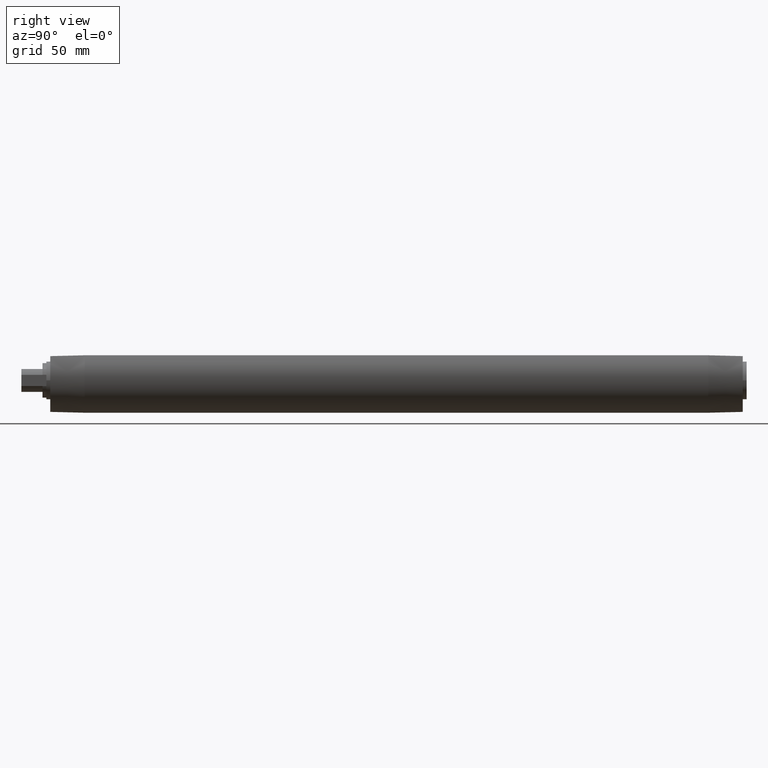
[diagram: clean part render]
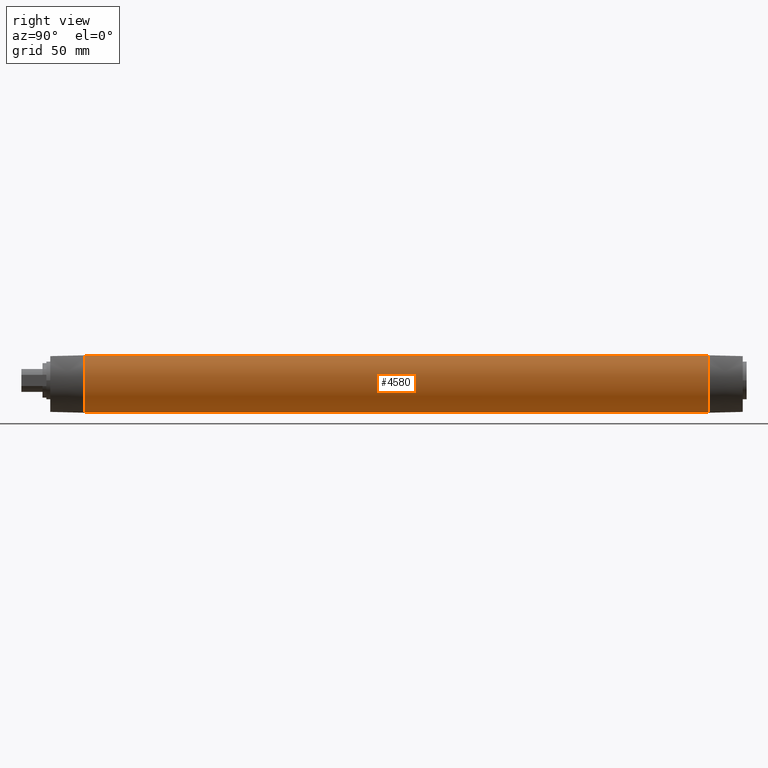
[diagram: same view with one face highlighted and labeled with its STEP entity id]
A machine part, right view. The second image highlights one B-rep face of the part: STEP entity #4580.
In plain terms, the highlighted cylindrical surface (partial cylindrical patch) has radius 20 mm, axis along (0, 1, 0).
Its self-contained STEP definition (entity closure, byte-faithful):
#760=CARTESIAN_POINT('',(-16.5698521417664,11.2,162.5));
#770=DIRECTION('',(0.,0.,-1.));
#780=VECTOR('',#770,1.);
#790=LINE('',#760,#780);
#800=CARTESIAN_POINT('',(-16.5698521417664,11.2,162.5));
#810=VERTEX_POINT('',#800);
#820=CARTESIAN_POINT('',(-16.5698521417664,11.2,-162.5));
#830=VERTEX_POINT('',#820);
#840=EDGE_CURVE('',#810,#830,#790,.T.);
#4050=CARTESIAN_POINT('',(-6.95970545353755,-18.75,-162.5));
#4060=VERTEX_POINT('',#4050);
#4170=CARTESIAN_POINT('',(0.,0.,-162.5));
#4180=DIRECTION('',(0.,0.,-1.));
#4190=DIRECTION('',(-0.347985272676877,-0.9375,0.));
#4200=AXIS2_PLACEMENT_3D('',#4170,#4180,#4190);
#4210=CIRCLE('',#4200,20.);
#4220=EDGE_CURVE('',#4060,#830,#4210,.T.);
#4340=CARTESIAN_POINT('',(0.,0.,-162.5));
#4350=DIRECTION('',(0.,0.,1.));
#4360=DIRECTION('',(1.,0.,0.));
#4370=AXIS2_PLACEMENT_3D('',#4340,#4350,#4360);
#4380=CYLINDRICAL_SURFACE('',#4370,20.);
#4390=ORIENTED_EDGE('',*,*,#4220,.F.);
#4400=ORIENTED_EDGE('',*,*,#840,.T.);
#4410=CARTESIAN_POINT('',(0.,0.,162.5));
#4420=DIRECTION('',(0.,0.,1.));
#4430=DIRECTION('',(-1.,1.22464679914735E-16,0.));
#4440=AXIS2_PLACEMENT_3D('',#4410,#4420,#4430);
#4450=CIRCLE('',#4440,20.);
#4460=CARTESIAN_POINT('',(-6.95970545353754,-18.75,162.5));
#4470=VERTEX_POINT('',#4460);
#4480=EDGE_CURVE('',#810,#4470,#4450,.T.);
#4490=ORIENTED_EDGE('',*,*,#4480,.F.);
#4500=CARTESIAN_POINT('',(-6.95970545353755,-18.75,-162.5));
#4510=DIRECTION('',(0.,0.,1.));
#4520=VECTOR('',#4510,1.);
#4530=LINE('',#4500,#4520);
#4540=EDGE_CURVE('',#4060,#4470,#4530,.T.);
#4550=ORIENTED_EDGE('',*,*,#4540,.T.);
#4560=EDGE_LOOP('',(#4550,#4490,#4400,#4390));
#4570=FACE_OUTER_BOUND('',#4560,.T.);
#4580=ADVANCED_FACE('',(#4570),#4380,.T.);